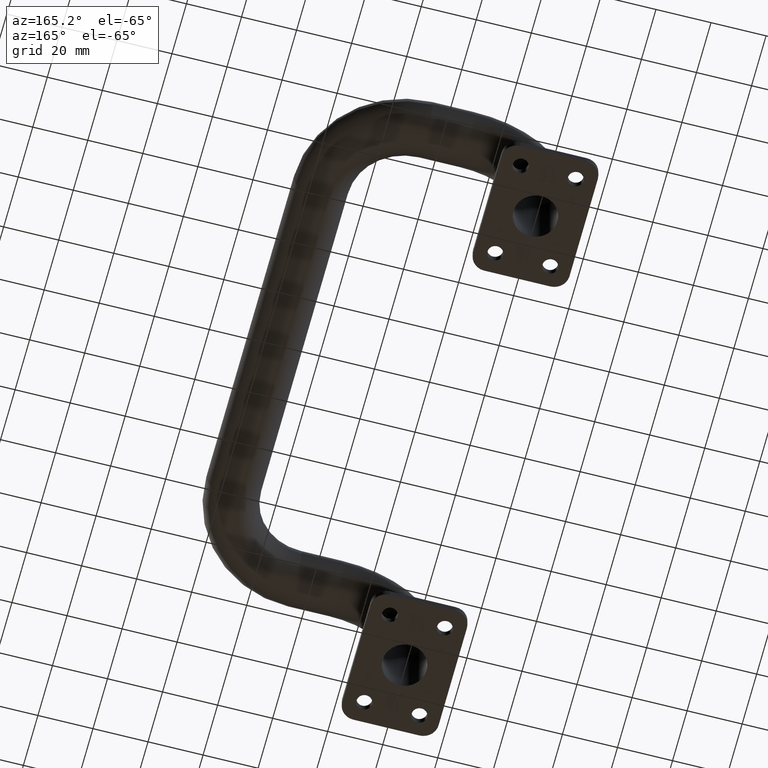
[diagram: clean part render]
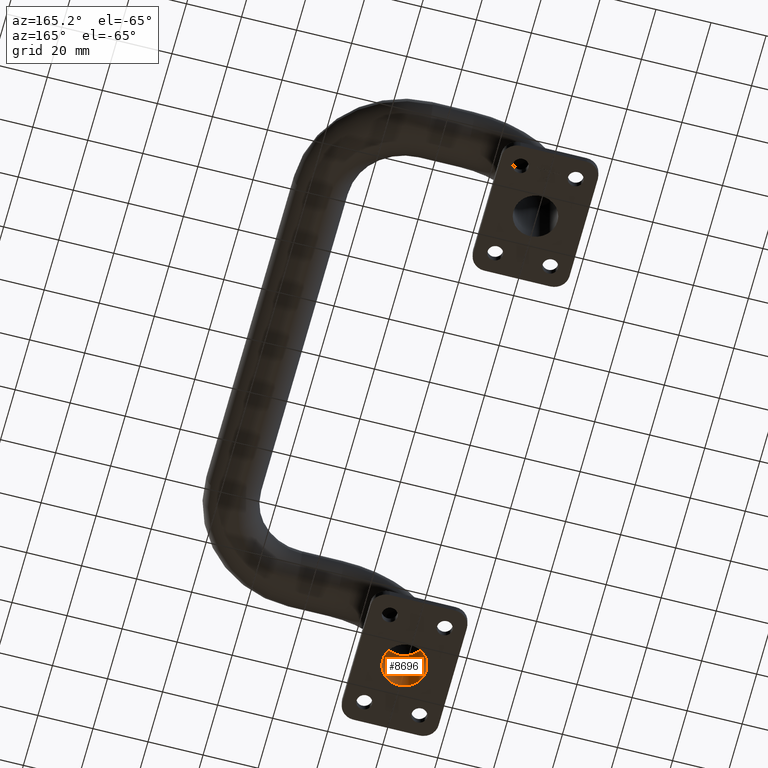
[diagram: same view with one face highlighted and labeled with its STEP entity id]
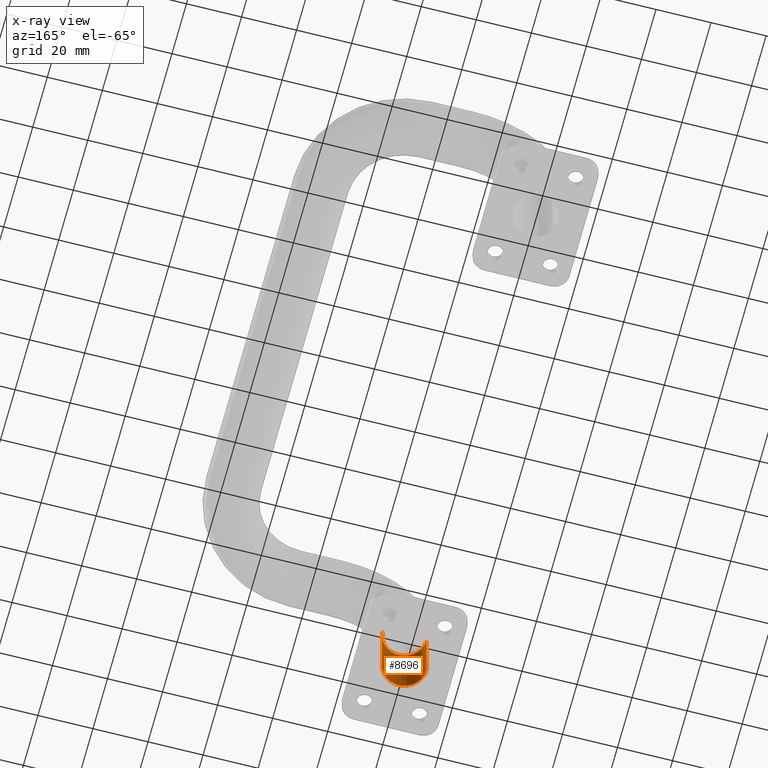
[diagram: x-ray of the same camera — body ghosted, the highlighted face saturated]
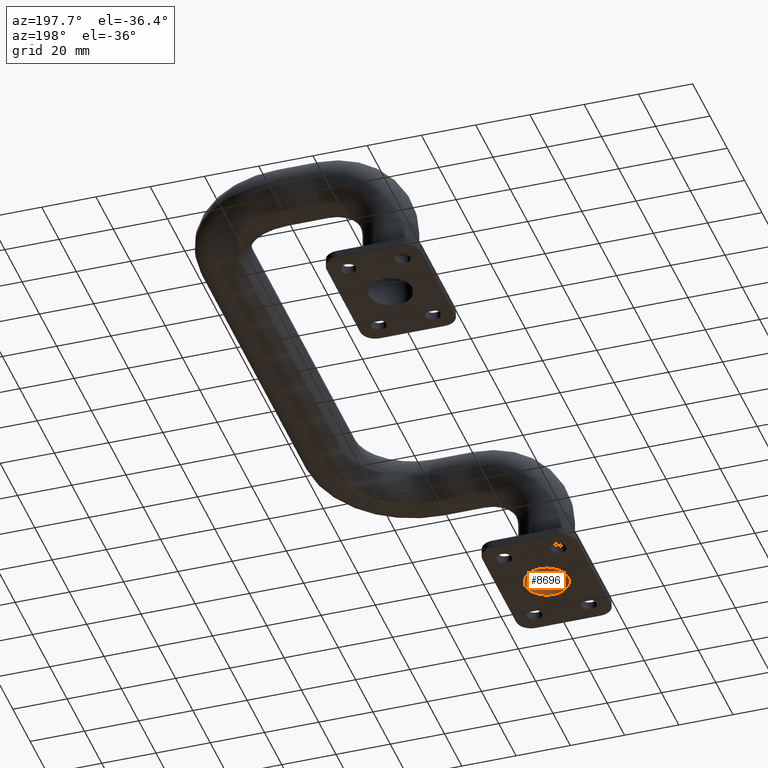
[diagram: same view with one face highlighted and labeled with its STEP entity id]
A machine part, auxiliary view. The second image highlights one B-rep face of the part: STEP entity #8696.
The next image is the same camera in x-ray: the body ghosted, the highlighted face saturated — about 1% of this face is hidden behind the body in this view.
A second angle (auxiliary view) of the same face is appended — the face is thin or edge-on in the first view.
In plain terms, the highlighted cylindrical surface (edge-blend (fillet) strip) has radius 8 mm, axis along (0, 0, 1).
Its self-contained STEP definition (entity closure, byte-faithful):
#509 = ORIENTED_EDGE ( 'NONE', *, *, #7276, .T. ) ;
#527 = DIRECTION ( 'NONE',  ( 0.000000000000000000, 1.387778780781445676E-16, 1.000000000000000000 ) ) ;
#1324 = ORIENTED_EDGE ( 'NONE', *, *, #8933, .F. ) ;
#1733 = FACE_OUTER_BOUND ( 'NONE', #7380, .T. ) ;
#1877 = DIRECTION ( 'NONE',  ( 0.000000000000000000, 1.387778780781445676E-16, 1.000000000000000000 ) ) ;
#1977 = VECTOR ( 'NONE', #6780, 1000.000000000000000 ) ;
#2547 = LINE ( 'NONE', #4478, #1977 ) ;
#2591 = DIRECTION ( 'NONE',  ( 1.000000000000000000, 0.000000000000000000, -6.938893903907233308E-17 ) ) ;
#2645 = VERTEX_POINT ( 'NONE', #8662 ) ;
#2857 = VERTEX_POINT ( 'NONE', #3899 ) ;
#3899 = CARTESIAN_POINT ( 'NONE',  ( 8.000000000000000000, -90.00000000000000000, 1.249000902703300950E-14 ) ) ;
#4283 = CIRCLE ( 'NONE', #9172, 8.000000000000001776 ) ;
#4478 = CARTESIAN_POINT ( 'NONE',  ( 8.000000000000000000, -90.00000000000000000, 1.193489751472043123E-14 ) ) ;
#4717 = DIRECTION ( 'NONE',  ( 6.938893903907228378E-17, 1.387778780781445676E-16, 1.000000000000000000 ) ) ;
#5298 = ORIENTED_EDGE ( 'NONE', *, *, #8744, .T. ) ;
#5367 = EDGE_CURVE ( 'NONE', #2645, #2857, #4283, .T. ) ;
#5532 = VERTEX_POINT ( 'NONE', #7325 ) ;
#5838 = DIRECTION ( 'NONE',  ( 1.000000000000000000, 0.000000000000000000, 0.000000000000000000 ) ) ;
#5933 = ORIENTED_EDGE ( 'NONE', *, *, #5367, .F. ) ;
#6280 = CYLINDRICAL_SURFACE ( 'NONE', #9189, 8.000000000000001776 ) ;
#6458 = DIRECTION ( 'NONE',  ( 6.938893903907228378E-17, 1.387778780781445676E-16, 1.000000000000000000 ) ) ;
#6780 = DIRECTION ( 'NONE',  ( 6.938893903907228378E-17, 1.387778780781445676E-16, 1.000000000000000000 ) ) ;
#6911 = CARTESIAN_POINT ( 'NONE',  ( -8.000000000000003553, -90.00000000000000000, 1.304512053934558935E-14 ) ) ;
#7004 = VECTOR ( 'NONE', #4717, 1000.000000000000000 ) ;
#7120 = LINE ( 'NONE', #6911, #7004 ) ;
#7212 = DIRECTION ( 'NONE',  ( 1.000000000000000000, 0.000000000000000000, 0.000000000000000000 ) ) ;
#7276 = EDGE_CURVE ( 'NONE', #2645, #8889, #7120, .T. ) ;
#7325 = CARTESIAN_POINT ( 'NONE',  ( 8.000000000000001776, -90.00000000000000000, 25.00000000000001421 ) ) ;
#7380 = EDGE_LOOP ( 'NONE', ( #5933, #509, #5298, #1324 ) ) ;
#7492 = CARTESIAN_POINT ( 'NONE',  ( -8.000000000000001776, -90.00000000000000000, 25.00000000000001421 ) ) ;
#7941 = CIRCLE ( 'NONE', #8161, 8.000000000000001776 ) ;
#8161 = AXIS2_PLACEMENT_3D ( 'NONE', #9512, #1877, #7212 ) ;
#8578 = CARTESIAN_POINT ( 'NONE',  ( -1.393068780271001328E-15, -90.00000000000000000, 1.249000902703300950E-14 ) ) ;
#8662 = CARTESIAN_POINT ( 'NONE',  ( -8.000000000000003553, -90.00000000000000000, 1.249000902703300950E-14 ) ) ;
#8696 = ADVANCED_FACE ( 'NONE', ( #1733 ), #6280, .F. ) ;
#8744 = EDGE_CURVE ( 'NONE', #8889, #5532, #7941, .T. ) ;
#8889 = VERTEX_POINT ( 'NONE', #7492 ) ;
#8933 = EDGE_CURVE ( 'NONE', #2857, #5532, #2547, .T. ) ;
#9172 = AXIS2_PLACEMENT_3D ( 'NONE', #8578, #527, #5838 ) ;
#9189 = AXIS2_PLACEMENT_3D ( 'NONE', #9554, #6458, #2591 ) ;
#9512 = CARTESIAN_POINT ( 'NONE',  ( 3.416546957058058157E-16, -90.00000000000000000, 25.00000000000001421 ) ) ;
#9554 = CARTESIAN_POINT ( 'NONE',  ( -1.393068780271001328E-15, -90.00000000000000000, 1.249000902703300950E-14 ) ) ;